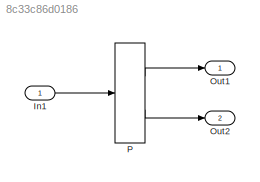
MODEL slx_8c33c86d0186
KIND model
CONFIG AbsTol = auto
CONFIG EnableMultiTasking = off
CONFIG FixedStep = auto
CONFIG MaxStep = auto
CONFIG MinStep = auto
CONFIG RelTol = 1e-3
CONFIG SampleTimeConstraint = Unconstrained
CONFIG Solver = FixedStepDiscrete
CONFIG SolverName = FixedStepDiscrete
CONFIG StartTime = 0.0
CONFIG StopTime = 10.0
BLOCK [Inport] In1
  IconDisplay = Port number
  PortDimensions = 3
BLOCK [Outport] Out1
  IconDisplay = Port number
BLOCK [Outport] Out2
  IconDisplay = Port number
  Port = 2
BLOCK [PreLookup] P
  BreakpointDataTypeStr = single
  BreakpointsData = [10:10:110]
  BreakpointsFirstPoint = 34
  BreakpointsNumPoints = 9
  BreakpointsSpacing = 3
  BreakpointsSpecification = Even spacing
  ExtrapMethod = Linear
  FractionDataTypeStr = single
  IndexDataTypeStr = uint16
  IndexSearchMethod = Evenly spaced points
  InputPortMap = u0
  Ports = [1, 2]
  RndMeth = Simplest
  UseLastBreakpoint = on
LINE In1:1 -> P:1
LINE P:1 -> Out1:1
LINE P:2 -> Out2:1
